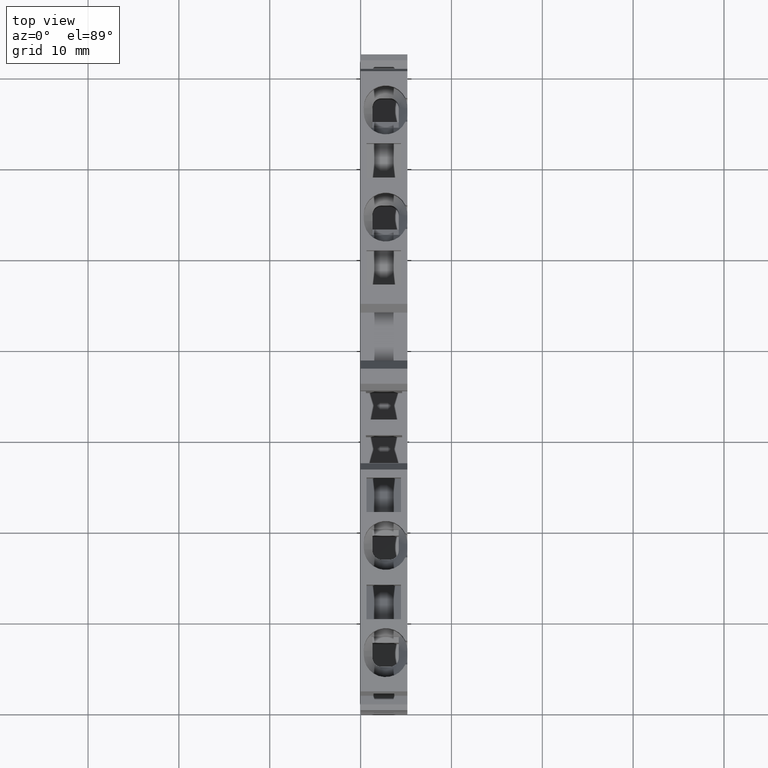
[diagram: clean part render]
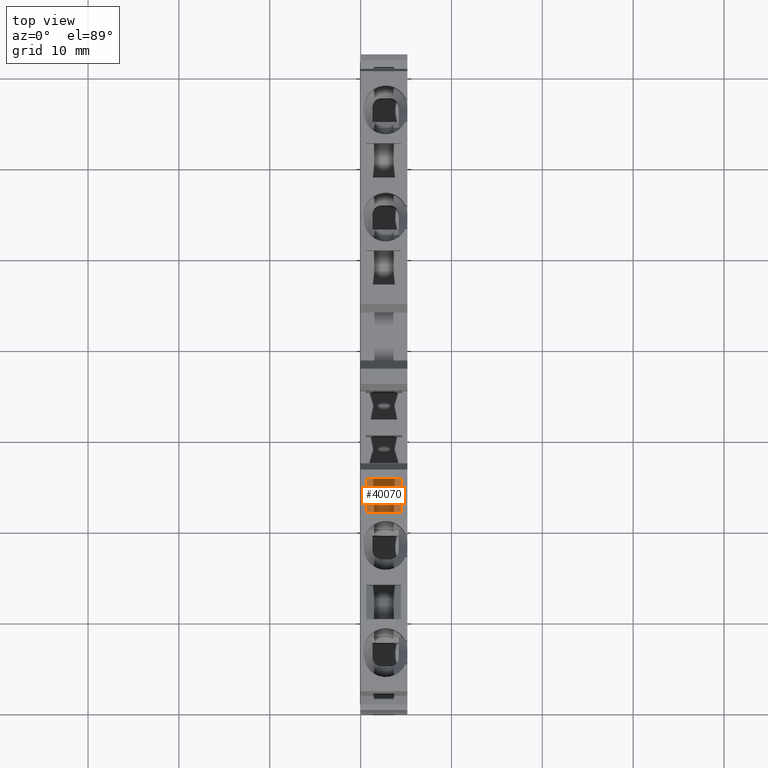
[diagram: same view with one face highlighted and labeled with its STEP entity id]
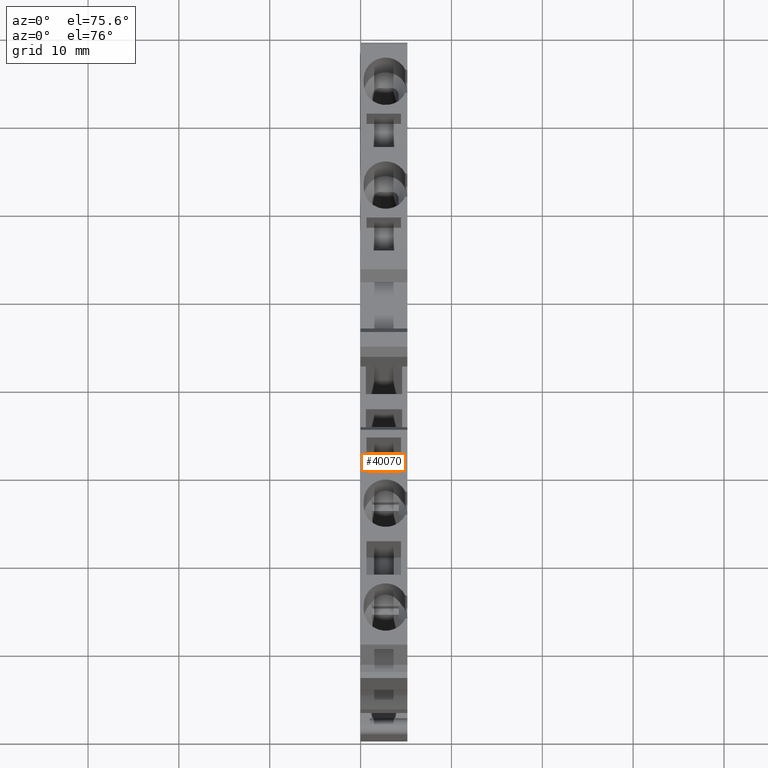
[diagram: same view with one face highlighted and labeled with its STEP entity id]
A machine part, top view. The second image highlights one B-rep face of the part: STEP entity #40070.
A second angle (auxiliary view) of the same face is appended — the face is thin or edge-on in the first view.
In plain terms, the highlighted planar face has unit normal (0, 0.5736, 0.8192).
Its self-contained STEP definition (entity closure, byte-faithful):
#39000=CARTESIAN_POINT('',(22.7428722166041,24.8258756292175,
-0.699999999997156));
#39010=VERTEX_POINT('',#39000);
#39040=CARTESIAN_POINT('',(22.742872216604,24.8258756292168,
2.85789173701743E-12));
#39050=DIRECTION('',(-1.08081618019685E-13,-1.01504222139106E-12,1.));
#39060=VECTOR('',#39050,1.);
#39070=LINE('',#39040,#39060);
#39080=CARTESIAN_POINT('',(22.7428722166045,24.8258756292214,
-4.49999999999716));
#39090=VERTEX_POINT('',#39080);
#39100=EDGE_CURVE('',#39090,#39010,#39070,.T.);
#39350=CARTESIAN_POINT('',(-9.8611082730739E-12,36.9184752898557,
-4.50000000000203));
#39360=DIRECTION('',(0.882947592859109,-0.46947156278555,
1.8928822546589E-13));
#39370=VECTOR('',#39360,1.);
#39380=LINE('',#39350,#39370);
#39390=CARTESIAN_POINT('',(18.6469280276211,27.0037277860608,
-4.49999999999803));
#39400=VERTEX_POINT('',#39390);
#39410=EDGE_CURVE('',#39400,#39090,#39380,.T.);
#39650=CARTESIAN_POINT('',(18.6469280276207,27.0037277860562,
1.97979431265116E-12));
#39660=DIRECTION('',(1.08081618019702E-13,1.01504222139105E-12,-1.));
#39670=VECTOR('',#39660,1.);
#39680=LINE('',#39650,#39670);
#39690=CARTESIAN_POINT('',(18.6469280276207,27.0037277860569,
-0.699999999998035));
#39700=VERTEX_POINT('',#39690);
#39710=EDGE_CURVE('',#39700,#39400,#39680,.T.);
#39910=CARTESIAN_POINT('',(20.9752577460084,25.7657329147742,
-1.20000000001363));
#39920=DIRECTION('',(0.46947156278555,0.882947592859108,
9.46970332147687E-13));
#39930=DIRECTION('',(0.882947592859109,-0.46947156278555,
6.48076369910638E-13));
#39940=AXIS2_PLACEMENT_3D('',#39910,#39920,#39930);
#39950=PLANE('',#39940);
#39960=ORIENTED_EDGE('',*,*,#39710,.F.);
#39970=ORIENTED_EDGE('',*,*,#39410,.F.);
#39980=ORIENTED_EDGE('',*,*,#39100,.F.);
#39990=CARTESIAN_POINT('',(-1.07323502421372E-11,36.9184752898521,
-0.700000000002032));
#40000=DIRECTION('',(-0.882947592859109,0.46947156278555,
-1.8928822546589E-13));
#40010=VECTOR('',#40000,1.);
#40020=LINE('',#39990,#40010);
#40030=EDGE_CURVE('',#39010,#39700,#40020,.T.);
#40040=ORIENTED_EDGE('',*,*,#40030,.F.);
#40050=EDGE_LOOP('',(#40040,#39980,#39970,#39960));
#40060=FACE_OUTER_BOUND('',#40050,.T.);
#40070=ADVANCED_FACE('',(#40060),#39950,.T.);